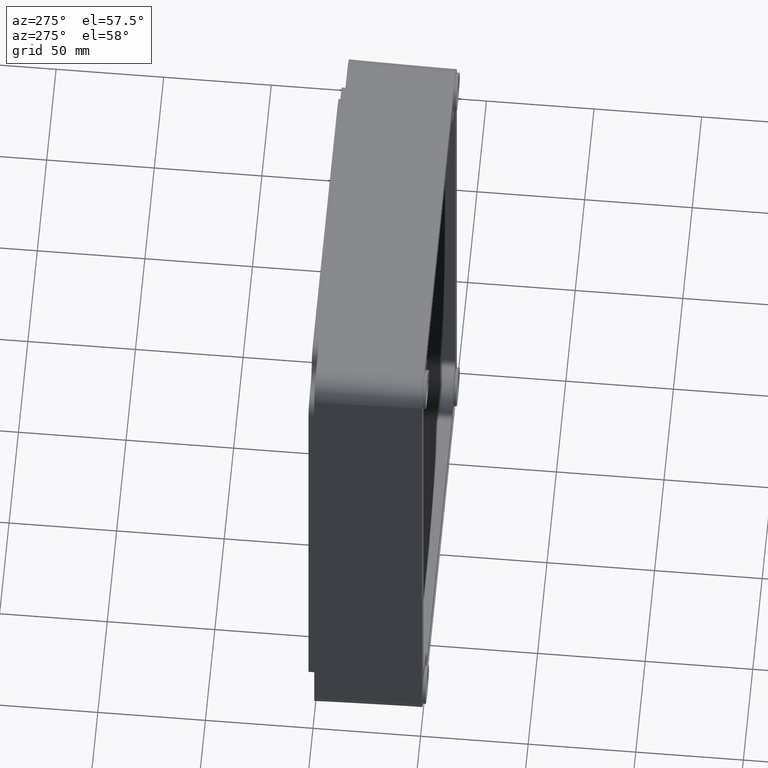
[diagram: clean part render]
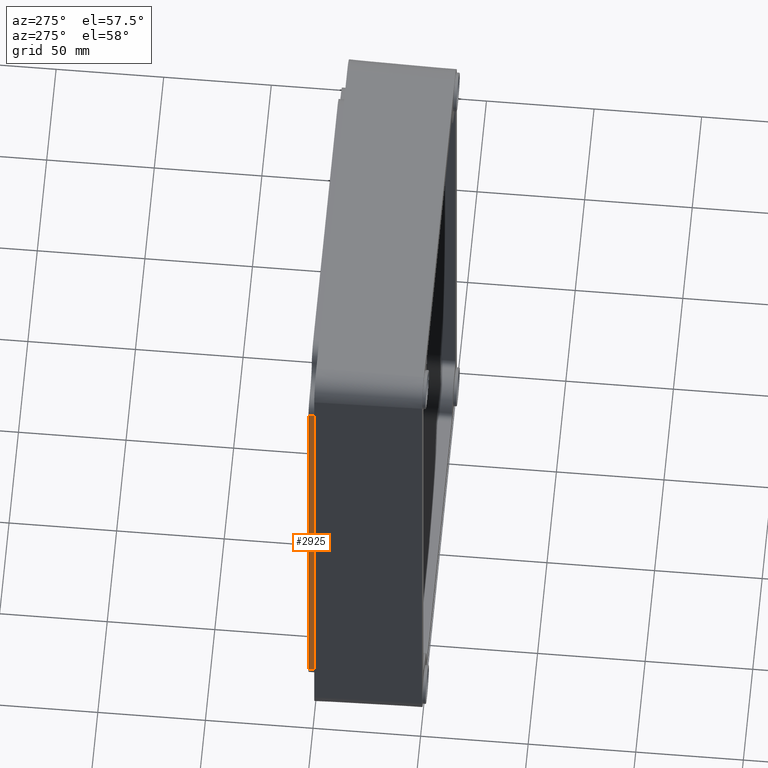
[diagram: same view with one face highlighted and labeled with its STEP entity id]
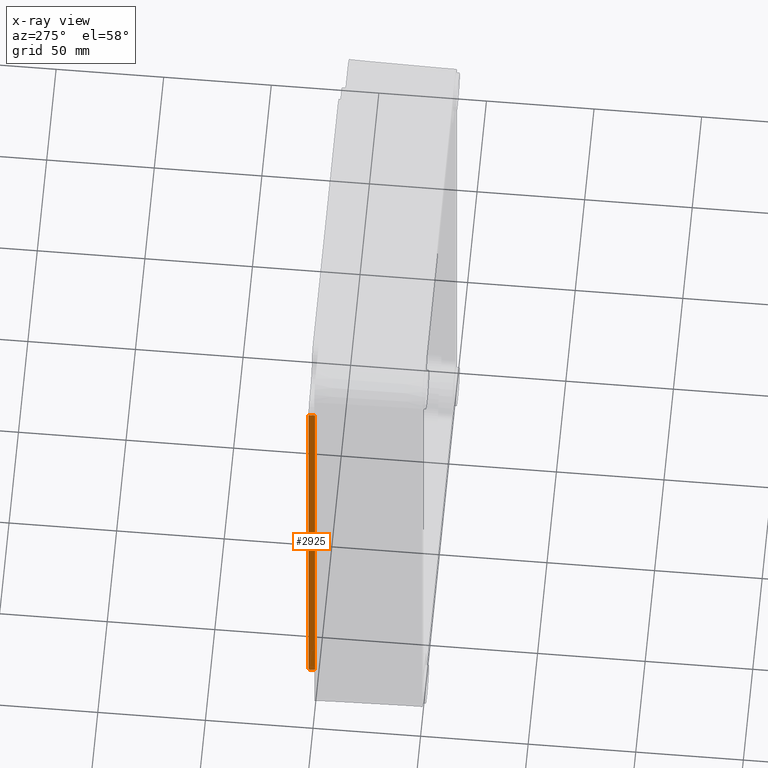
[diagram: x-ray of the same camera — body ghosted, the highlighted face saturated]
A machine part, auxiliary view. The second image highlights one B-rep face of the part: STEP entity #2925.
The next image is the same camera in x-ray: the body ghosted, the highlighted face saturated — about 0% of this face is hidden behind the body in this view.
In plain terms, the highlighted planar face has unit normal (1, -0, 0).
Its self-contained STEP definition (entity closure, byte-faithful):
#77 = VERTEX_POINT ( 'NONE', #1602 ) ;
#131 = VERTEX_POINT ( 'NONE', #762 ) ;
#190 = LINE ( 'NONE', #1843, #377 ) ;
#233 = ORIENTED_EDGE ( 'NONE', *, *, #382, .F. ) ;
#234 = DIRECTION ( 'NONE',  ( -2.534755763984374300E-016, 0.0000000000000000000, 1.000000000000000000 ) ) ;
#377 = VECTOR ( 'NONE', #721, 1000.000000000000000 ) ;
#382 = EDGE_CURVE ( 'NONE', #2068, #77, #2486, .T. ) ;
#416 = PLANE ( 'NONE',  #1402 ) ;
#619 = VECTOR ( 'NONE', #234, 1000.000000000000000 ) ;
#623 = VERTEX_POINT ( 'NONE', #1643 ) ;
#638 = DIRECTION ( 'NONE',  ( 2.534755763984374300E-016, 0.0000000000000000000, -1.000000000000000000 ) ) ;
#721 = DIRECTION ( 'NONE',  ( -0.0000000000000000000, -1.000000000000000000, -0.0000000000000000000 ) ) ;
#762 = CARTESIAN_POINT ( 'NONE',  ( -89.59999999999993700, 0.0000000000000000000, -109.5000000000000600 ) ) ;
#821 = LINE ( 'NONE', #1294, #2683 ) ;
#946 = CARTESIAN_POINT ( 'NONE',  ( -89.59999999999993700, 3.000000000000000000, -109.5000000000000600 ) ) ;
#1008 = DIRECTION ( 'NONE',  ( -0.0000000000000000000, -1.000000000000000000, -0.0000000000000000000 ) ) ;
#1115 = ORIENTED_EDGE ( 'NONE', *, *, #2298, .T. ) ;
#1228 = EDGE_CURVE ( 'NONE', #131, #623, #821, .T. ) ;
#1250 = LINE ( 'NONE', #2357, #2956 ) ;
#1294 = CARTESIAN_POINT ( 'NONE',  ( -89.59999999999993700, 0.0000000000000000000, -109.5000000000000600 ) ) ;
#1397 = CARTESIAN_POINT ( 'NONE',  ( -89.59999999999993700, 3.000000000000000000, -109.5000000000000600 ) ) ;
#1402 = AXIS2_PLACEMENT_3D ( 'NONE', #2461, #1978, #638 ) ;
#1443 = EDGE_CURVE ( 'NONE', #77, #623, #190, .T. ) ;
#1602 = CARTESIAN_POINT ( 'NONE',  ( -89.60000000000000900, 3.000000000000000000, 109.5000000000000700 ) ) ;
#1643 = CARTESIAN_POINT ( 'NONE',  ( -89.60000000000000900, 0.0000000000000000000, 109.5000000000000700 ) ) ;
#1732 = ORIENTED_EDGE ( 'NONE', *, *, #1443, .F. ) ;
#1758 = EDGE_LOOP ( 'NONE', ( #1826, #1732, #233, #1115 ) ) ;
#1826 = ORIENTED_EDGE ( 'NONE', *, *, #1228, .T. ) ;
#1843 = CARTESIAN_POINT ( 'NONE',  ( -89.60000000000000900, 3.000000000000000000, 109.5000000000000700 ) ) ;
#1978 = DIRECTION ( 'NONE',  ( 1.000000000000000000, -0.0000000000000000000, 2.534755763984374300E-016 ) ) ;
#2058 = FACE_OUTER_BOUND ( 'NONE', #1758, .T. ) ;
#2068 = VERTEX_POINT ( 'NONE', #1397 ) ;
#2298 = EDGE_CURVE ( 'NONE', #2068, #131, #1250, .T. ) ;
#2357 = CARTESIAN_POINT ( 'NONE',  ( -89.59999999999993700, 3.000000000000000000, -109.5000000000000600 ) ) ;
#2461 = CARTESIAN_POINT ( 'NONE',  ( -89.59999999999993700, 3.000000000000000000, -109.5000000000000600 ) ) ;
#2486 = LINE ( 'NONE', #946, #619 ) ;
#2683 = VECTOR ( 'NONE', #2875, 1000.000000000000000 ) ;
#2875 = DIRECTION ( 'NONE',  ( -2.534755763984374300E-016, 0.0000000000000000000, 1.000000000000000000 ) ) ;
#2925 = ADVANCED_FACE ( 'NONE', ( #2058 ), #416, .F. ) ;
#2956 = VECTOR ( 'NONE', #1008, 1000.000000000000000 ) ;